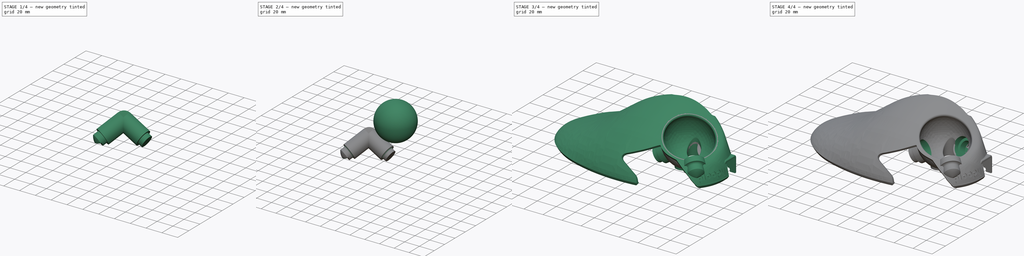
[diagram: build sequence overview — one tinted view per stage of 4, left to right]
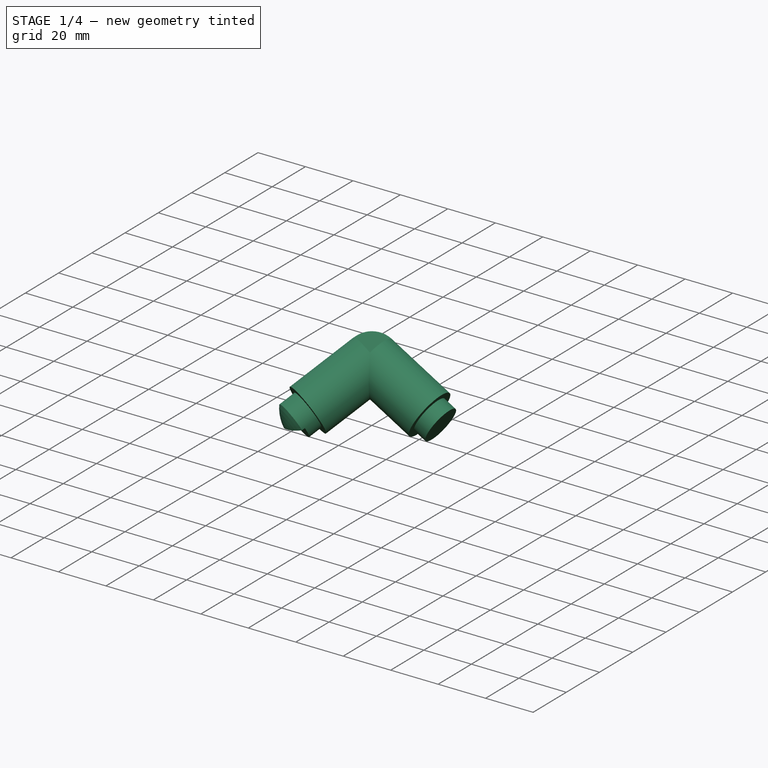
[diagram: stage 1 of 4 — iso view after this stage's code; geometry added in this stage tinted green]
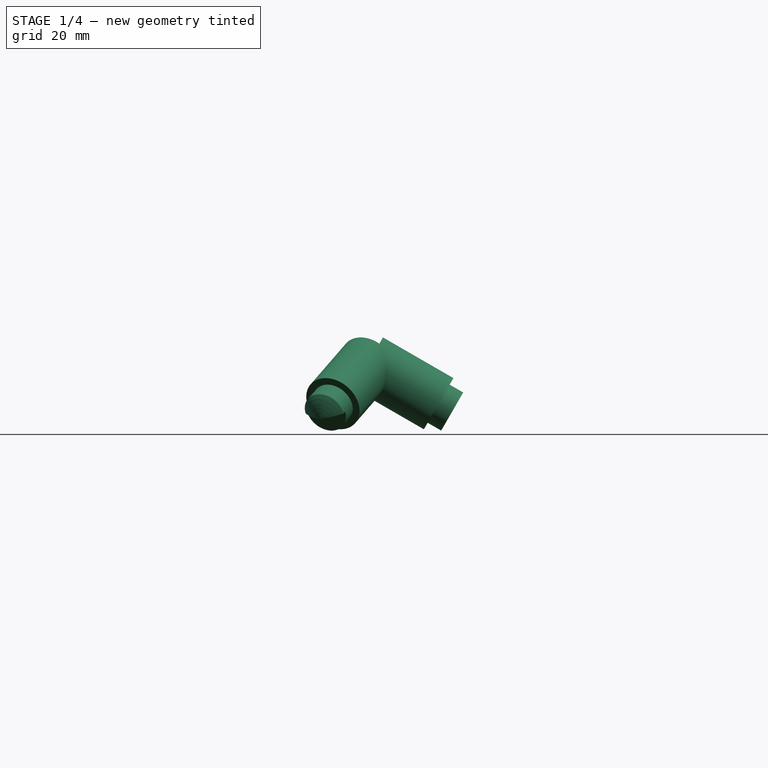
[diagram: stage 1 of 4 — front view after this stage's code; geometry added in this stage tinted green]
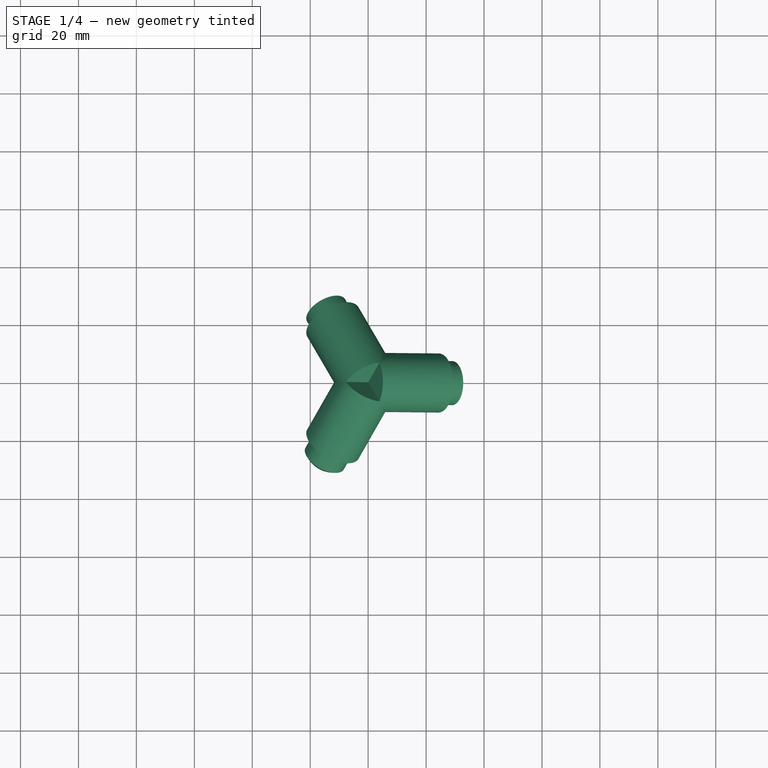
[diagram: stage 1 of 4 — top view after this stage's code; geometry added in this stage tinted green]
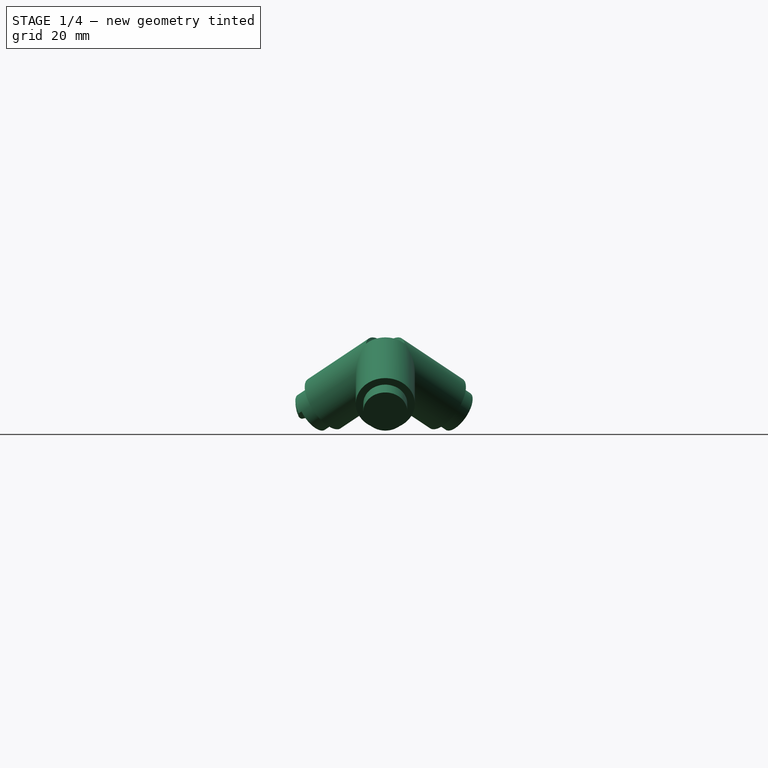
[diagram: stage 1 of 4 — right view after this stage's code; geometry added in this stage tinted green]
FCSTD DOCUMENT  (FreeCAD 0.19R23721 (Git))
Label: Ploopy-BTU-top
License: Creative Commons Attribution
LicenseURL: http://creativecommons.org/licenses/by/4.0/
objects: Sketcher::SketchObject×4, PartDesign::Revolution×4, PartDesign::Body×3, PartDesign::PolarPattern×2, Part::Cut×2, Part::Feature×1, Spreadsheet::Sheet×1, PartDesign::Plane×1, Part::Sphere×1, PartDesign::Fillet×1, Part::Fuse×1
note: 25 computed .brp shape members not serialized (recipe doc carries the construction recipe); baked Part::Feature solids carry a one-line shape summary decoded from their .brp

FEATURE [Part::Feature] Part__Feature  label="ploopy-top-without-bearing-sockets"
  shape: bbox 247.4 x 198.3 x 182.4 mm, 552 faces (baked)
FEATURE [Spreadsheet::Sheet] Spreadsheet  label="Variables"
  cells = A1=Dimensions of original trackball top; A2=Ball centre position (X, Y, Z):; B2(ball_centre_x)=38.1; C2(ball_centre_y)=-3.34; D2(ball_centre_z)=30; A3=Ball diameter:; B3(d_ball)=44.2; A4=Ball well diameter:; B4(d_ball_well)=45.4; A5=Ball well thickness:; B5(t_ball_well)=2; A7=Dimensions of single BTU; B7=Actual dimension; C7=With clearance; A8=Top diameter:; B8(d_btu_top)=17; C8(d_btu_top_clearance)=18; A9=Top height (from mounting flange to ball top):; B9(h_btu_top)=4.8; A10=Bottom diameter:; B10(d_btu_bottom)=12.6; C10(d_btu_bottom_clearance)=12.8; A11=Bottom height:; B11(h_btu_bottom)=6.4; C11(h_btu_bottom_clearance)=6.6; A12=Thickness of socket:; B12(t_btu_socket)=1.2; A14=BTU positioning; A15=BTU angle (from pointing straight up):; B15(a_btu)=60; A16=BTU group rotation (around X, Y, Z axes):; B16(a_btu_group_x)=0; C16(a_btu_group_y)=0; D16(a_btu_group_z)=76; E16=Doesn't affect model
FEATURE [Sketcher::SketchObject] Sketch
  FullyConstrained = true
  MapMode = 5
  Placement = pos=(0,0,0) rot=(1,0,0;1.5708rad)
  Support = -> [XZ_Plane]
  expr: Constraints[19] = Spreadsheet.h_btu_bottom_clearance - Spreadsheet.t_btu_socket
  expr: Constraints[18] = 180 - Spreadsheet.a_btu
  expr: Constraints[16] = Spreadsheet.h_btu_top + Spreadsheet.h_btu_bottom_clearance
  expr: Constraints[15] = Spreadsheet.d_ball / 2
  expr: Constraints[17] = Spreadsheet.d_btu_bottom_clearance / 2 + Spreadsheet.t_btu_socket
  expr: Constraints[14] = Spreadsheet.d_btu_top_clearance / 2 + Spreadsheet.t_btu_socket
  sketch-geometry (8):
    g0: LineSegment StartX=0 StartY=0 StartZ=0 EndX=19.1392 EndY=-11.05 EndZ=0
    g1: LineSegment StartX=19.1392 StartY=-11.05 StartZ=0 EndX=29.0119 EndY=-16.75 EndZ=0
    g2: LineSegment StartX=29.0119 StartY=-16.75 StartZ=0 EndX=32.8119 EndY=-10.1682 EndZ=0
    g3: LineSegment StartX=32.8119 StartY=-10.1682 StartZ=0 EndX=28.1353 EndY=-7.46821 EndZ=0
    g4: LineSegment StartX=28.1353 StartY=-7.46821 StartZ=0 EndX=29.4353 EndY=-5.21654 EndZ=0
    g5: LineSegment StartX=29.4353 StartY=-5.21654 StartZ=0 EndX=5.1 EndY=8.83346 EndZ=0
    g6: LineSegment StartX=5.1 StartY=8.83346 StartZ=0 EndX=0 EndY=0 EndZ=0
    g7: LineSegment StartX=0 StartY=0 StartZ=0 EndX=-19.1392 EndY=11.05 EndZ=0
  constraints (23):
    c: Coincident(g0,g-1)
    c: Coincident(g1,g0)
    c: Parallel(g1,g0)
    c: Coincident(g2,g1)
    c: Coincident(g2,g3)
    c: Coincident(g3,g4)
    c: Coincident(g5,g6)
    c: Coincident(g6,g0)
    c: Coincident(g4,g5)
    c: Perpendicular(g2,g1)
    c: Parallel(g3,g1)
    c: Parallel(g5,g0)
    c: Perpendicular(g3,g4)
    c: Perpendicular(g6,g0)
    c: Distance(g6) = 10.2
    c: Distance(g0) = 22.1
    c: Distance(g1) = 11.4
    c: Distance(g2) = 7.6
    c: Angle(g1,g-2) = 2.0944
    c: Distance(g3) = 5.4
    c: Coincident(g7,g0)
    c: Equal(g7,g0)
    c: Perpendicular(g6,g7)
FEATURE [PartDesign::Revolution] Revolution  label="BTUSocketOuterRevolve"
  Angle = 360
  Axis = (-19.1392,2.5e-15,11.05)
  Base = (0,0,0)
  Placement = pos=(0,0,0) rot=(1,0,0;1.5708rad)
  Profile = -> Sketch
  ReferenceAxis = -> Sketch [Axis0]
  Reversed = true
FEATURE [PartDesign::PolarPattern] PolarPattern  label="BTUSocketPattern"
  Angle = 360
  Axis = -> Sketch [V_Axis]
  BaseFeature = -> Revolution
  Occurrences = 3
  Originals = -> [Revolution]
  Placement = pos=(0,0,0) rot=(1,0,0;1.5708rad)
FEATURE [PartDesign::Body] Body001  label="origin-preview"
  Origin = -> Origin001
FEATURE [PartDesign::Plane] DatumPlane  label="FrontBTUCapPlane"
  AttachmentOffset = pos=(0,0,0) rot=(0,-1,0;0.523599rad)
  Length = 79.989
  MapMode = 5
  Placement = pos=(0,0,0) rot=(0.774597,0.447214,0.447214;1.82348rad)
  ResizeMode = 0
  Support = -> [YZ_Plane]
  Width = 61.6877
FEATURE [Sketcher::SketchObject] Sketch001
  ExternalGeometry = -> [PolarPattern]
  FullyConstrained = true
  MapMode = 5
  Placement = pos=(0,0,0) rot=(0.774597,0.447214,0.447214;1.82348rad)
  Support = -> [DatumPlane]
  expr: Constraints[0] = Spreadsheet.t_btu_socket
  sketch-geometry (9):
    g0: LineSegment StartX=-29.0119 StartY=-16.75 StartZ=0 EndX=-33.342 EndY=-19.25 EndZ=0
    g1: LineSegment StartX=-32.8119 StartY=-10.1682 StartZ=0 EndX=-33.8511 EndY=-10.7682 EndZ=0
    g2: LineSegment StartX=-32.8119 StartY=-10.1682 StartZ=0 EndX=-32.2119 EndY=-11.2074 EndZ=0
    g3: LineSegment StartX=-33.342 StartY=-19.25 StartZ=0 EndX=-31.8428 EndY=-18.3845 EndZ=0
    g4: ArcOfCircle CenterX=-18.1986 CenterY=-14.0849 CenterZ=0 NormalX=0 NormalY=0 NormalZ=1 AngleXU=0 Radius=16 StartAngle=2.93279 EndAngle=3.4703
    g5: ArcOfCircle CenterX=-18.1986 CenterY=-14.0849 CenterZ=0 NormalX=0 NormalY=0 NormalZ=1 AngleXU=0 Radius=14.3056 StartAngle=2.93907 EndAngle=3.44686
    g6: ArcOfCircle CenterX=-30.9229 CenterY=-18.4249 CenterZ=0 NormalX=0 NormalY=0 NormalZ=1 AngleXU=0 Radius=2.55592 StartAngle=3.4703 EndAngle=5.03609
    g7: ArcOfCircle CenterX=-27.1006 CenterY=-16.8901 CenterZ=0 NormalX=0 NormalY=0 NormalZ=1 AngleXU=0 Radius=4.97214 StartAngle=3.44686 EndAngle=4.06231
    g8: LineSegment StartX=-30.1099 StartY=-20.8481 StartZ=0 EndX=-31.6099 EndY=-18.25 EndZ=0
  constraints (25):
    c: Distance(g1) = 1.2
    c: Distance(g0) = 5
    c: Coincident(g2,g1)
    c: PointOnObject(g2,g-3)
    c: Coincident(g3,g0)
    c: PointOnObject(g3,g0)
    c: Coincident(g4,g1)
    c: Coincident(g1,g-3)
    c: Equal(g2,g1)
    c: Perpendicular(g1,g2)
    c: Coincident(g3,g4)
    c: PointOnObject(g0,g-3)
    c: Symmetric(g1,g-3,g0)
    c: Coincident(g5,g2)
    c: Coincident(g5,g3)
    c: Coincident(g5,g4)
    c: Radius(g4) = 16
    c: Tangent(g6,g4) = -1.5708
    c: Tangent(g7,g5) = -1.5708
    c: Coincident(g6,g7)
    c: Coincident(g8,g6)
    c: PointOnObject(g8,g0)
    c: Perpendicular(g0,g8)
    c: Distance(g8,g4) = 2
    c: Distance(g8) = 3
FEATURE [PartDesign::Revolution] Revolution001  label="FrontBTUCapTop"
  Angle = 180
  Axis = (-2.16506,-3.75,-2.5)
  Base = (-14.5059,-25.125,-16.75)
  BaseFeature = -> PolarPattern
  Midplane = true
  Placement = pos=(0,0,0) rot=(1,0,0;1.5708rad)
  Profile = -> Sketch001
  ReferenceAxis = -> Sketch001 [Axis0]
  Reversed = true
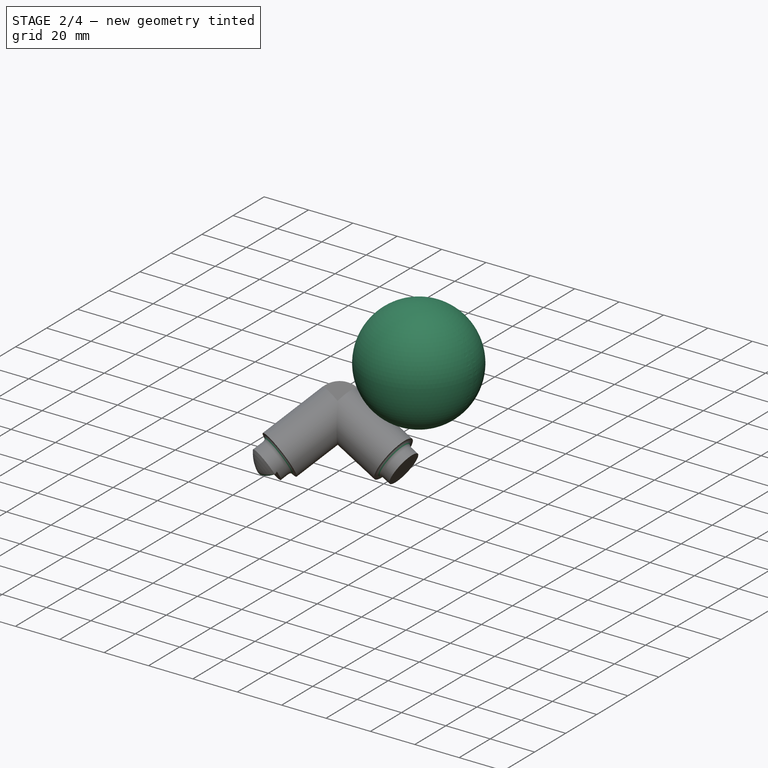
[diagram: stage 2 of 4 — iso view after this stage's code; geometry added in this stage tinted green]
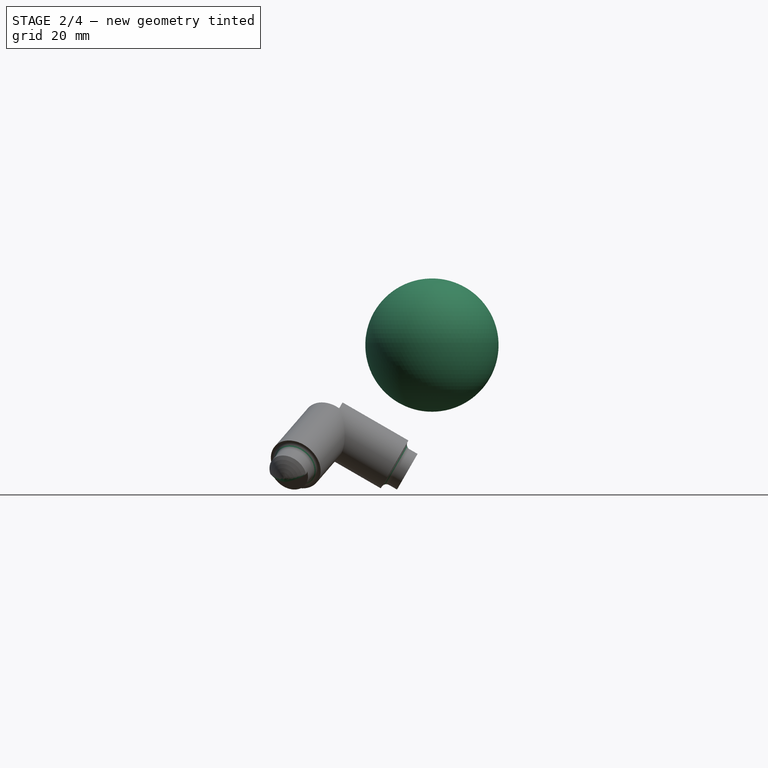
[diagram: stage 2 of 4 — front view after this stage's code; geometry added in this stage tinted green]
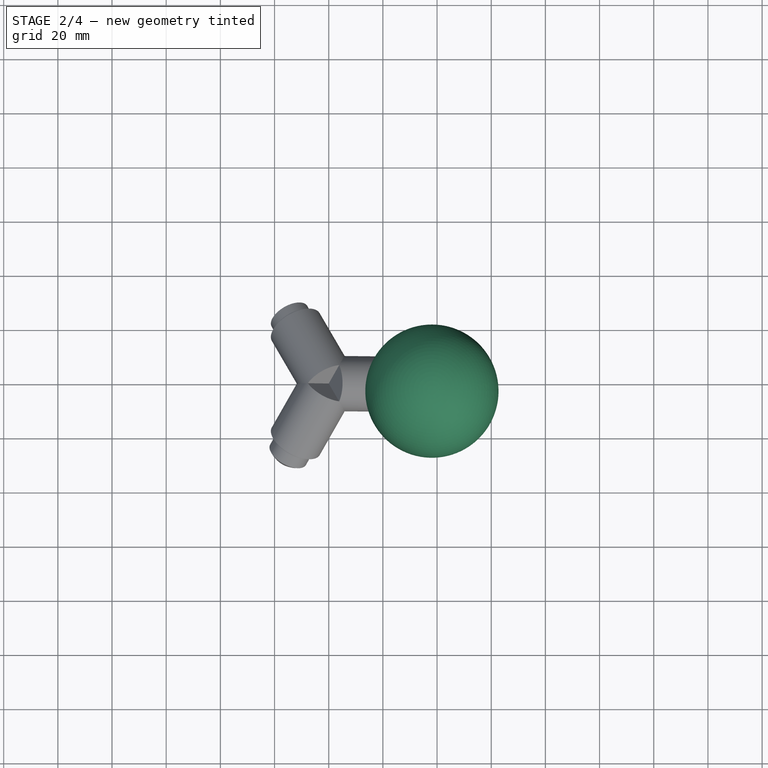
[diagram: stage 2 of 4 — top view after this stage's code; geometry added in this stage tinted green]
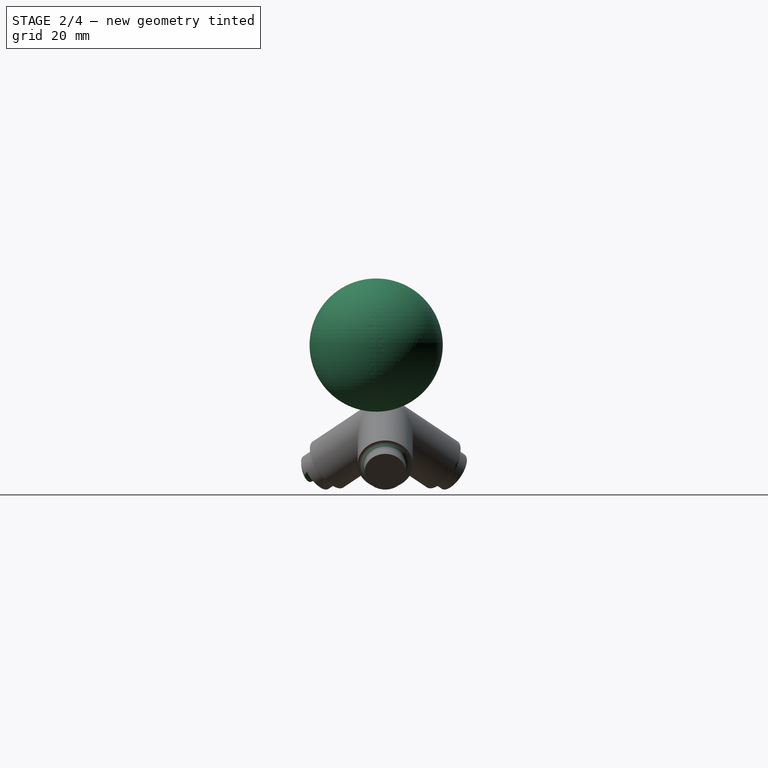
[diagram: stage 2 of 4 — right view after this stage's code; geometry added in this stage tinted green]
FEATURE [Sketcher::SketchObject] Sketch002
  ExternalGeometry = -> [Revolution001]
  FullyConstrained = true
  MapMode = 5
  Placement = pos=(-3.499e-13,-6.061e-13,1.2122e-12) rot=(0.991591,-0.029732,0.125949;3.60148rad)
  Support = -> [Revolution001]
  sketch-geometry (9):
    g0: LineSegment StartX=-21.7793 StartY=26.5645 StartZ=0 EndX=-20.706 EndY=27.1011 EndZ=0
    g1: LineSegment StartX=-22.316 StartY=27.6378 StartZ=0 EndX=-21.7793 EndY=26.5645 EndZ=0
    g2: LineSegment StartX=-9.25732 StartY=32.8255 StartZ=0 EndX=-8.18401 EndY=33.3621 EndZ=0
    g3: LineSegment StartX=-8.72067 StartY=34.4354 StartZ=0 EndX=-8.18401 EndY=33.3621 EndZ=0
    g4: ArcOfCircle CenterX=-7.42634 CenterY=21.7812 CenterZ=0 NormalX=0 NormalY=0 NormalZ=1 AngleXU=0 Radius=14.3056 StartAngle=2.25277 EndAngle=2.76056
    g5: ArcOfCircle CenterX=-7.42634 CenterY=21.7812 CenterZ=0 NormalX=0 NormalY=0 NormalZ=1 AngleXU=0 Radius=16 StartAngle=2.22933 EndAngle=2.76685
    g6: ArcOfCircle CenterX=-12.9692 CenterY=19.0098 CenterZ=0 NormalX=0 NormalY=0 NormalZ=1 AngleXU=0 Radius=14.3056 StartAngle=1.30832 EndAngle=1.81612
    g7: ArcOfCircle CenterX=-12.9692 CenterY=19.0098 CenterZ=0 NormalX=0 NormalY=0 NormalZ=1 AngleXU=0 Radius=16 StartAngle=1.30204 EndAngle=1.83955
    g8: LineSegment StartX=-9.25732 StartY=32.8255 StartZ=0 EndX=-20.706 EndY=27.1011 EndZ=0
  constraints (21):
    c: Coincident(g0,g-7)
    c: Coincident(g0,g-4)
    c: Coincident(g1,g-7)
    c: Coincident(g2,g-3)
    c: Coincident(g2,g-8)
    c: Coincident(g3,g-8)
    c: Coincident(g3,g2)
    c: Coincident(g0,g1)
    c: Coincident(g4,g0)
    c: Coincident(g4,g-4)
    c: Tangent(g4,g-4)
    c: Coincident(g5,g1)
    c: Tangent(g5,g-6) = -1.5708
    c: Coincident(g6,g2)
    c: Coincident(g6,g4)
    c: Tangent(g6,g-3)
    c: Coincident(g7,g3)
    c: Coincident(g7,g5)
    c: Tangent(g7,g-5)
    c: Coincident(g8,g2)
    c: Coincident(g8,g0)
FEATURE [PartDesign::Revolution] Revolution002  label="FrontBTUCapBottom"
  Angle = 20
  Axis = (-11.0851,6.4,4e-14)
  Base = (-8.96336,-28.325,-16.75)
  BaseFeature = -> Revolution001
  Placement = pos=(0,0,0) rot=(1,0,0;1.5708rad)
  Profile = -> Sketch002
  ReferenceAxis = -> Sketch002 [Axis0]
  Reversed = true
FEATURE [Part::Sphere] Sphere  label="ball-well-diameter-plus-a-bit"
  Angle1 = -90
  Angle2 = 90
  Angle3 = 360
  AttacherType = Attacher::AttachEngine3D
  Placement = pos=(38.1,-3.34,30) rot=(0,0,1;0rad)
  Radius = 24.6
  expr: .Placement.Base.z = Spreadsheet.ball_centre_z
  expr: .Placement.Base.y = Spreadsheet.ball_centre_y
  expr: .Placement.Base.x = Spreadsheet.ball_centre_x
  expr: Radius = Spreadsheet.d_ball_well / 2 + Spreadsheet.t_ball_well - 0.1
FEATURE [PartDesign::Fillet] Fillet  label="FilletBTUSocketJoin"
  Base = -> Revolution002 [Edge23,Edge22,Edge2]
  BaseFeature = -> Revolution002
  Placement = pos=(0,0,0) rot=(1,0,0;1.5708rad)
  Radius = 2
  SupportTransform = false
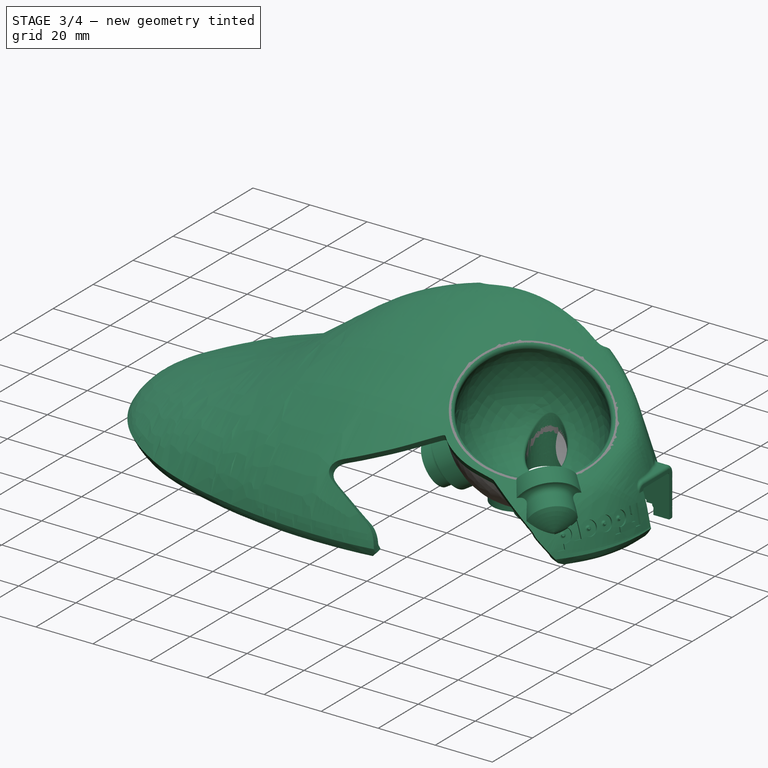
[diagram: stage 3 of 4 — iso view after this stage's code; geometry added in this stage tinted green]
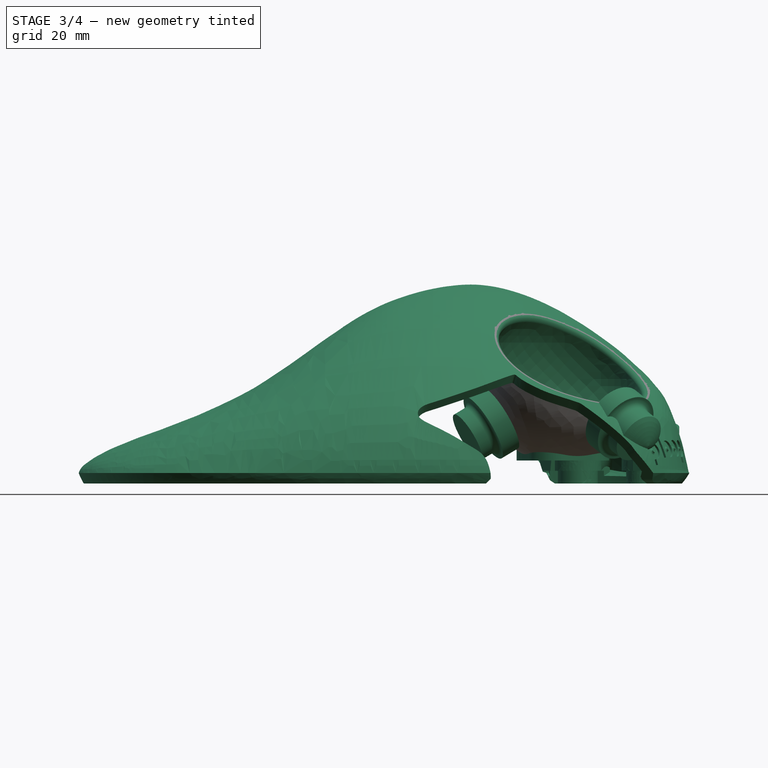
[diagram: stage 3 of 4 — front view after this stage's code; geometry added in this stage tinted green]
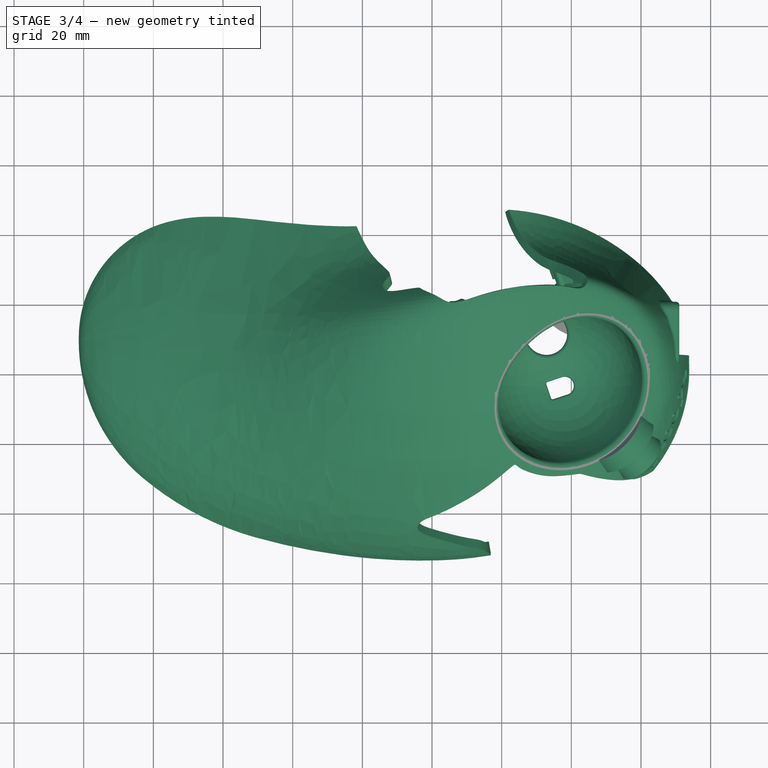
[diagram: stage 3 of 4 — top view after this stage's code; geometry added in this stage tinted green]
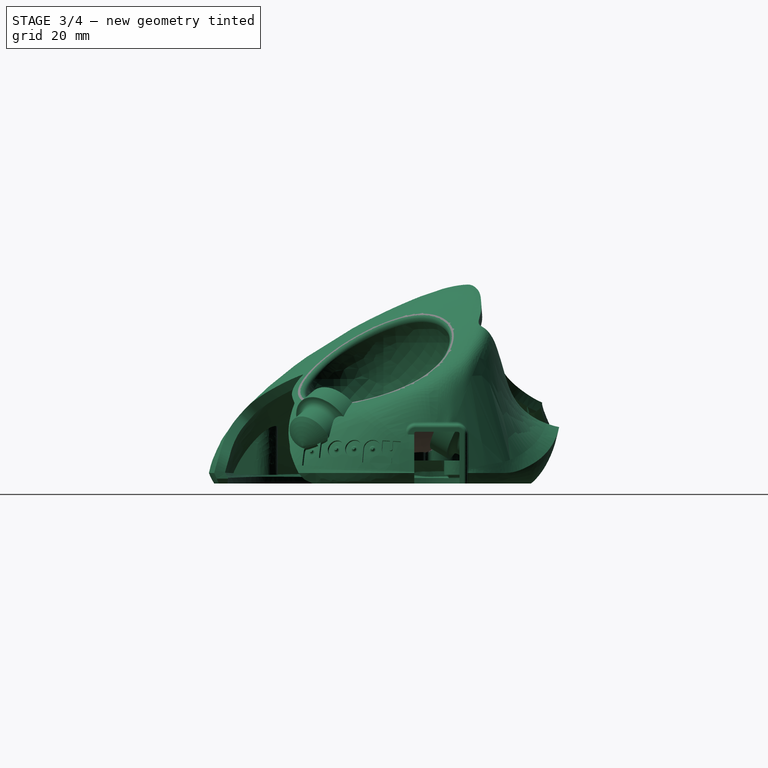
[diagram: stage 3 of 4 — right view after this stage's code; geometry added in this stage tinted green]
FEATURE [PartDesign::Body] Body  label="BTU-outer-sockets"
  Group = -> [Sketch,Revolution,PolarPattern,DatumPlane,Sketch001,Revolution001,Sketch002,Revolution002,Fillet]
  Origin = -> Origin
  Placement = pos=(38.1,-3.34,30) rot=(0,0,1;1.32645rad)
  Tip = -> Fillet
  expr: .Placement.Base.z = Spreadsheet.ball_centre_z
  expr: .Placement.Base.x = Spreadsheet.ball_centre_x
  expr: .Placement.Base.y = Spreadsheet.ball_centre_y
FEATURE [Part::Cut] Cut  label="TrimBallWellFromSockets"
  Base = -> Body
  Tool = -> Sphere
FEATURE [PartDesign::Body] Body002  label="BTU-inner-sockets"
  Group = -> [Sketch003,Revolution003,PolarPattern001]
  Origin = -> Origin002
  Placement = pos=(38.1,-3.34,30) rot=(0,0,1;1.32645rad)
  Tip = -> PolarPattern001
  expr: .Placement.Rotation.Angle = Spreadsheet.a_btu_group_z
FEATURE [Part::Fuse] Fusion  label="UnionSocketsAndTop"
  Base = -> Part__Feature
  Tool = -> Cut
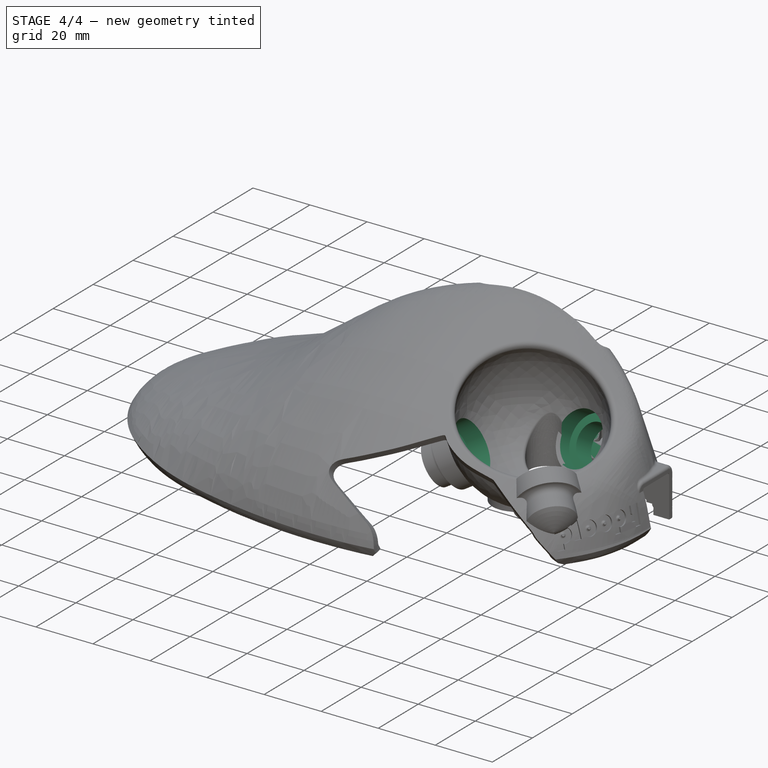
[diagram: stage 4 of 4 — iso view after this stage's code; geometry added in this stage tinted green]
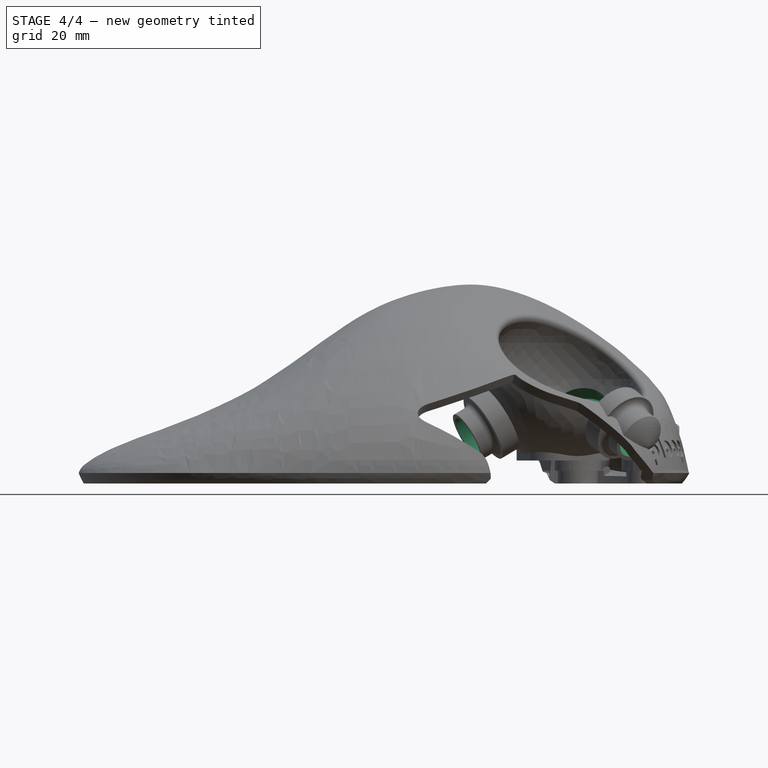
[diagram: stage 4 of 4 — front view after this stage's code; geometry added in this stage tinted green]
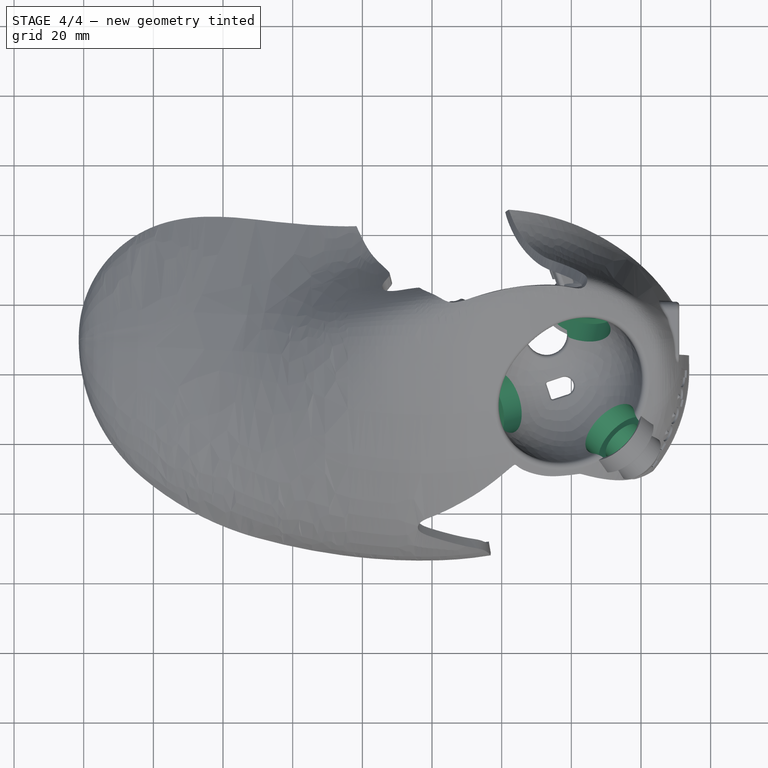
[diagram: stage 4 of 4 — top view after this stage's code; geometry added in this stage tinted green]
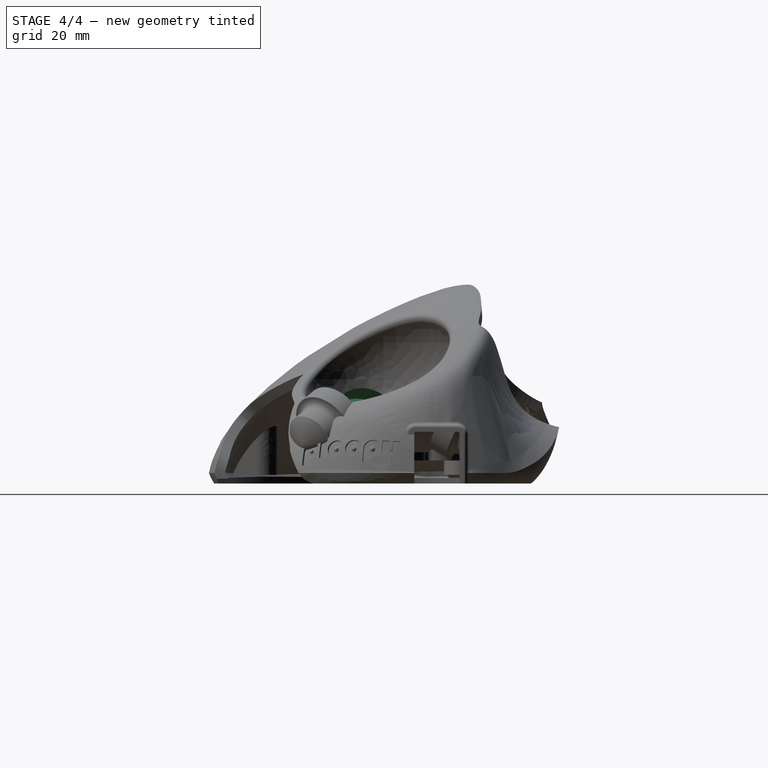
[diagram: stage 4 of 4 — right view after this stage's code; geometry added in this stage tinted green]
FEATURE [Sketcher::SketchObject] Sketch003
  FullyConstrained = true
  MapMode = 5
  Placement = pos=(0,0,0) rot=(1,0,0;1.5708rad)
  Support = -> [XZ_Plane002]
  expr: Constraints[19] = Spreadsheet.d_btu_top_clearance / 2
  expr: Constraints[15] = Spreadsheet.d_btu_bottom_clearance / 2
  expr: Constraints[14] = Spreadsheet.h_btu_bottom_clearance
  expr: Constraints[13] = Spreadsheet.d_ball / 2 + Spreadsheet.h_btu_top + Spreadsheet.h_btu_bottom_clearance
  expr: Constraints[12] = 180 - Spreadsheet.a_btu
  sketch-geometry (8):
    g0: LineSegment StartX=0 StartY=0 StartZ=0 EndX=29.0119 EndY=-16.75 EndZ=0
    g1: LineSegment StartX=29.0119 StartY=-16.75 StartZ=0 EndX=32.2119 EndY=-11.2074 EndZ=0
    g2: LineSegment StartX=32.2119 StartY=-11.2074 StartZ=0 EndX=26.4961 EndY=-7.90744 EndZ=0
    g3: LineSegment StartX=26.4961 StartY=-7.90744 StartZ=0 EndX=27.7961 EndY=-5.65577 EndZ=0
    g4: LineSegment StartX=27.7961 StartY=-5.65577 StartZ=0 EndX=4.5 EndY=7.79423 EndZ=0
    g5: LineSegment StartX=4.5 StartY=7.79423 StartZ=0 EndX=0 EndY=0 EndZ=0
    g6: LineSegment StartX=26.4961 StartY=-7.90744 StartZ=0 EndX=23.2961 EndY=-13.45 EndZ=0
    g7: LineSegment StartX=0 StartY=0 StartZ=0 EndX=-29.0119 EndY=16.75 EndZ=0
  constraints (23):
    c: Coincident(g0,g-1)
    c: Coincident(g1,g0)
    c: Coincident(g2,g1)
    c: Coincident(g3,g2)
    c: Coincident(g4,g3)
    c: Coincident(g5,g4)
    c: Coincident(g5,g0)
    c: Perpendicular(g5,g0)
    c: Perpendicular(g1,g0)
    c: Perpendicular(g3,g0)
    c: Parallel(g0,g4)
    c: Parallel(g0,g2)
    c: Angle(g0,g-2) = 2.0944
    c: Distance(g0) = 33.5
    c: Distance(g2) = 6.6
    c: Distance(g1) = 6.4
    c: Coincident(g6,g2)
    c: PointOnObject(g6,g0)
    c: Parallel(g3,g6)
    c: Distance(g6,g3) = 9
    c: Coincident(g7,g0)
    c: Parallel(g0,g7)
    c: Equal(g7,g0)
FEATURE [PartDesign::Revolution] Revolution003  label="BTUHoleRevolve"
  Angle = 360
  Axis = (-29.0119,3.7e-15,16.75)
  Base = (0,0,0)
  Placement = pos=(0,0,0) rot=(1,0,0;1.5708rad)
  Profile = -> Sketch003
  ReferenceAxis = -> Sketch003 [Axis1]
  Reversed = true
FEATURE [PartDesign::PolarPattern] PolarPattern001
  Angle = 360
  Axis = -> Sketch003 [V_Axis]
  BaseFeature = -> Revolution003
  Occurrences = 3
  Originals = -> [Revolution003]
  Placement = pos=(0,0,0) rot=(1,0,0;1.5708rad)
FEATURE [Part::Cut] Cut001  label="CutBTUHolesFromTop"
  Base = -> Fusion
  Tool = -> Body002
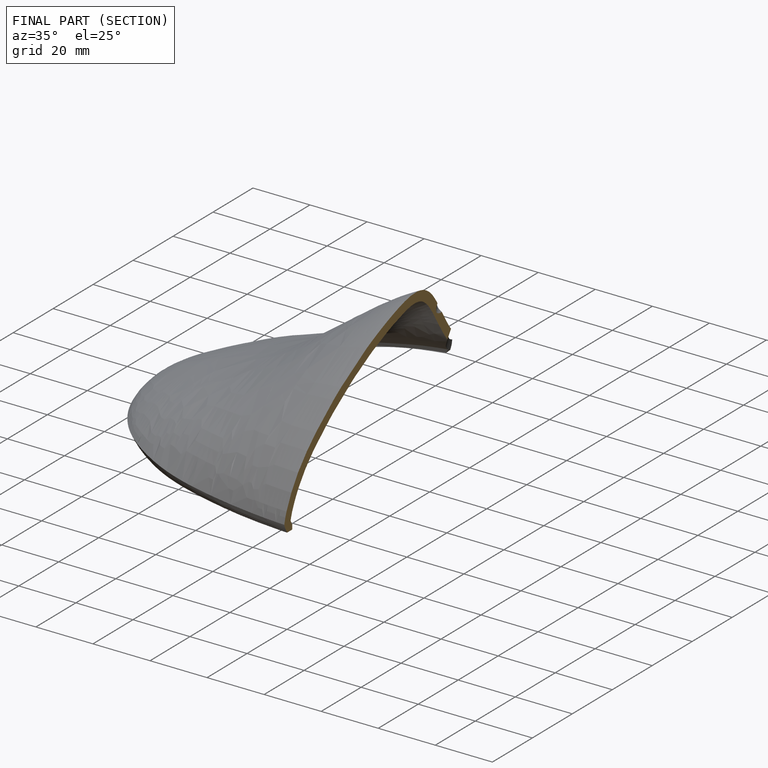
[diagram: finished part — half-section view (interior)]
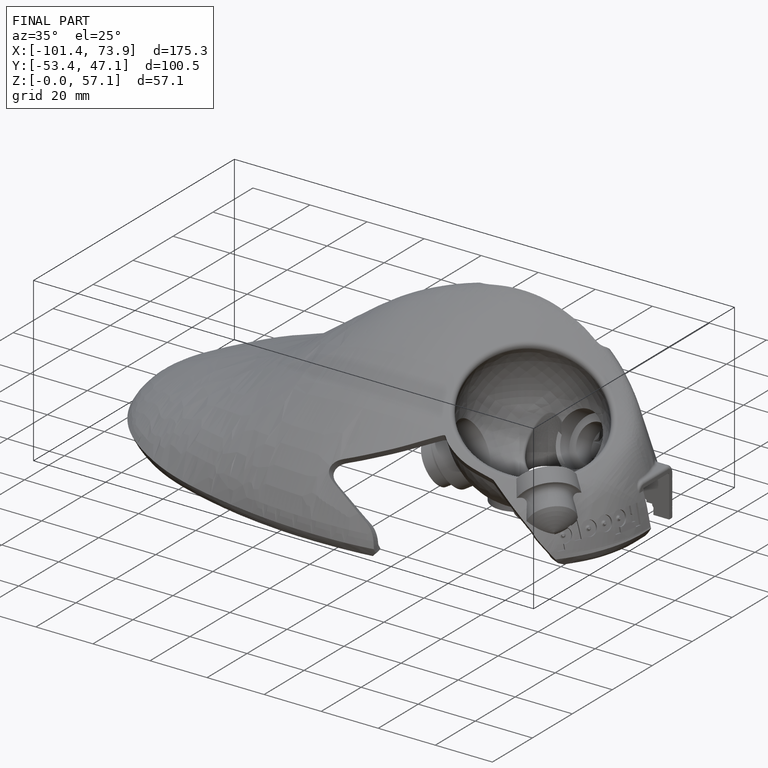
[diagram: finished part — iso view with bounding-box wireframe]
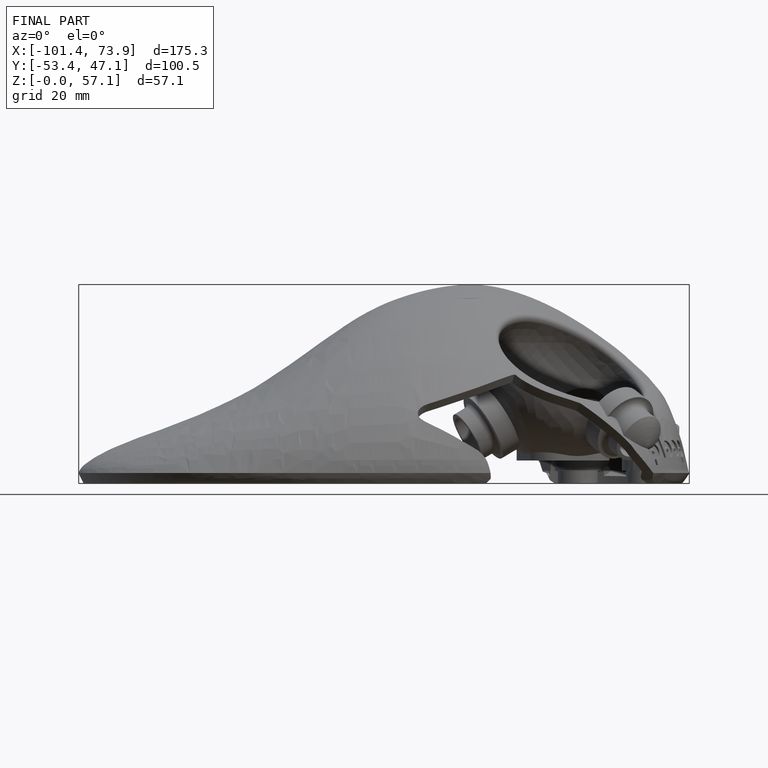
[diagram: finished part — front view with bounding-box wireframe]
